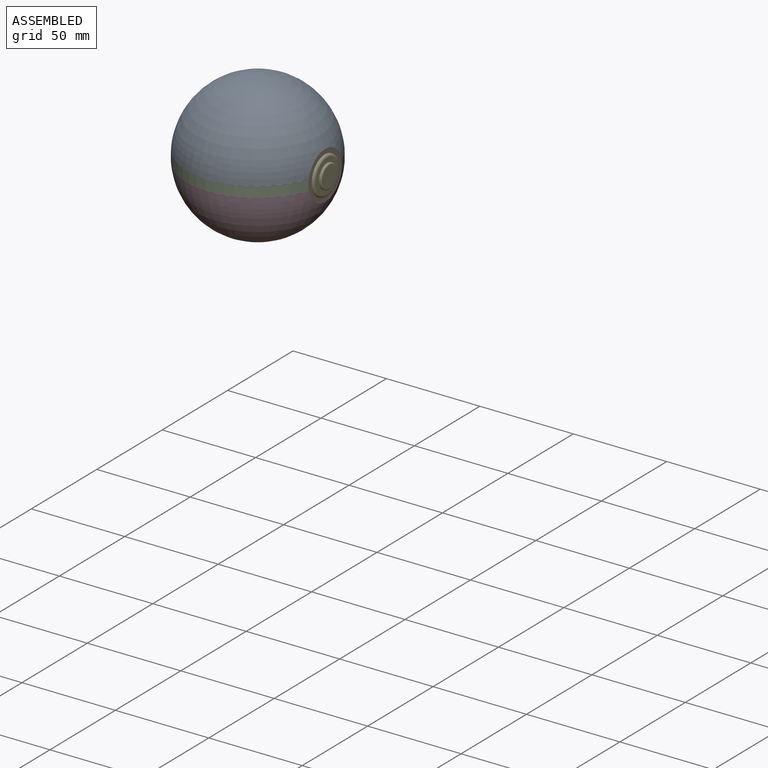
[diagram: assembled view]
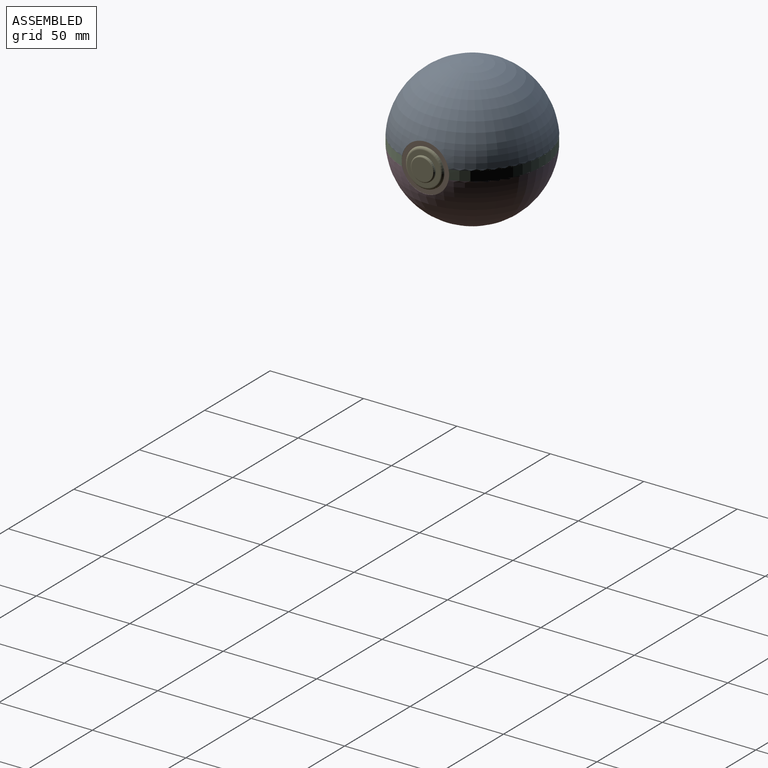
[diagram: assembled view, second angle]
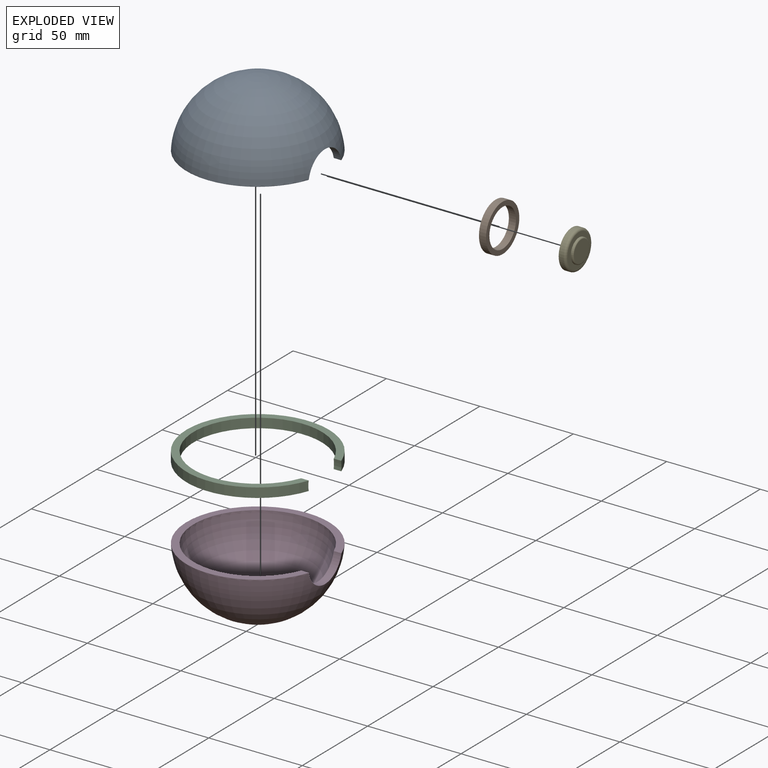
[diagram: exploded view]
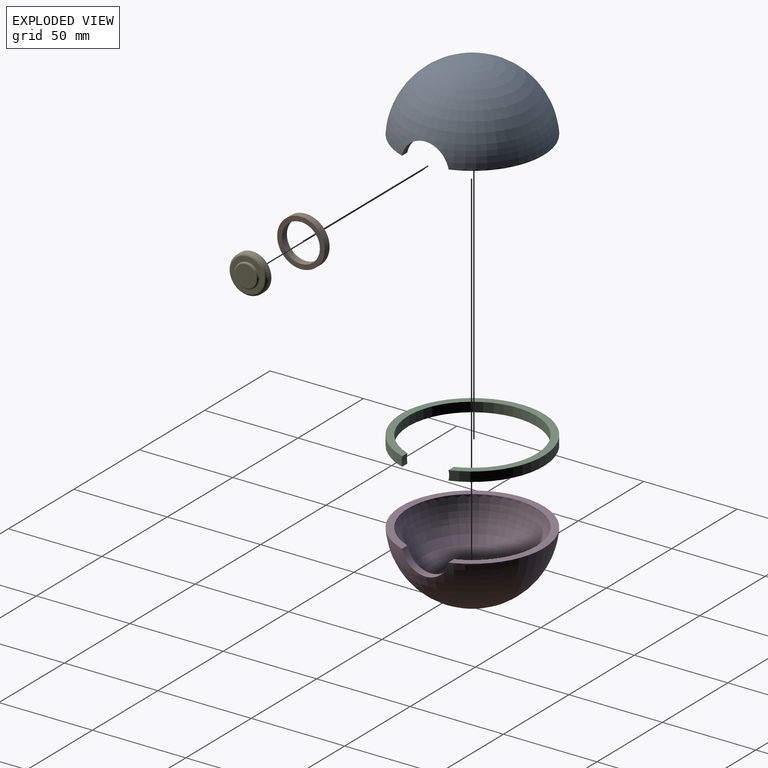
[diagram: exploded view, second angle]
ASSEMBLY  parts=5 mates=4
PART A: 4 faces, bbox 76.2x76.2x35.6 mm
  f0: torus R=0.09mm, axis (0,0,-1), area 6673.9mm2, adj f1,f3
  f1: plane 76.2x74.11mm, normal (0,0,-1), area 769.7mm2, adj f0,f2,f3
  f2: torus R=0.08mm, axis (0,0,-1), area 8347.8mm2, adj f1,f3
  f3: cylinder r=12.7mm len=24.89mm, axis (0,-1,0), area 141.2mm2, adj f0,f1,f2
PART B: 4 faces, bbox 25.4x25.4x3.8 mm
  f0: cylinder r=10.16mm len=20.32mm, axis (0,0,1), area 243.2mm2, adj f1,f3
  f1: plane 25.4x25.4mm, normal (0,0,-1), area 182.4mm2, adj f0,f2
  f2: cylinder r=12.7mm len=25.4mm, axis (0,0,1), area 304mm2, adj f1,f3
  f3: plane 25.4x25.4mm, normal (0,0,1), area 182.4mm2, adj f0,f2
PART C: 6 faces, bbox 74.1x76.2x5.1 mm
  f0: cylinder r=34.29mm len=68.58mm, axis (0,0,-1), area 963.2mm2, adj f1,f3,f4,f5
  f1: plane 76.2x74.11mm, normal (0,0,-1), area 769.7mm2, adj f0,f2,f4,f5
  f2: cylinder r=38.1mm len=76.2mm, axis (0,0,-1), area 1085.5mm2, adj f1,f3,f4,f5
  f3: plane 76.2x74.11mm, normal (0,0,1), area 769.7mm2, adj f0,f2,f4,f5
  f4: cylinder r=12.7mm len=5.08mm, axis (1,0,0), area 20.8mm2, adj f0,f1,f2,f3
  f5: cylinder r=12.7mm len=5.08mm, axis (1,0,0), area 20.8mm2, adj f0,f1,f2,f3
PART D: same geometry as A
PART E: 7 faces, bbox 22x5.1x22 mm
  f0: cylinder r=10.16mm len=20.32mm, axis (0,1,0), area 162.1mm2, adj f2,f6
  f1: plane 17.78x17.78mm, normal (0,-1,0), area 121.6mm2, adj f3,f6
  f2: plane 20.32x20.32mm, normal (0,1,0), area 324.3mm2, adj f0
  f3: cylinder r=6.35mm len=12.7mm, axis (0,1,0), area 25.3mm2, adj f1,f5
  f4: plane 11.43x11.43mm, normal (0,-1,0), area 102.6mm2, adj f5
  f5: torus R=5.71mm, axis (0,-1,0), area 38.4mm2, adj f3,f4
  f6: torus R=8.89mm, axis (0,-1,0), area 121.6mm2, adj f0,f1
PLACE A rot(axis=(0,0,1),90deg) t=(47.89,61.87,14.08)mm
PLACE B rot(axis=(0,-1,0),90deg) t=(79.96,61.87,14.08)mm
PLACE C t=(47.89,61.87,11.54)mm
PLACE D rot(axis=(0.71,-0.71,0),180deg) t=(47.89,61.87,14.08)mm
PLACE E rot(axis=(0,0,1),90deg) t=(81.23,61.87,14.08)mm
MATE fastened A.f0 <-> C.f0  axis (0,0,-1) through (47.89,61.87,16.62)mm
MATE fastened D.f0 <-> C.f0  axis (0,0,1) through (47.89,61.87,11.54)mm
MATE fastened E.f0 <-> B.f0  axis (-1,0,0) through (81.23,61.87,14.08)mm
MATE fastened B.f0 <-> A.f3  axis (1,0,0) through (83.77,61.87,14.08)mm
